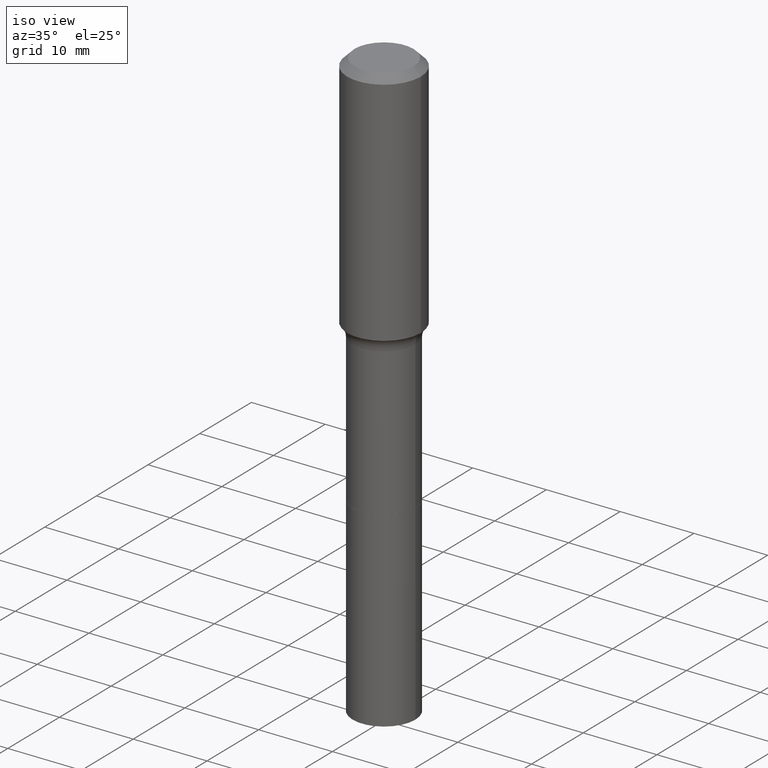
[diagram: clean part render]
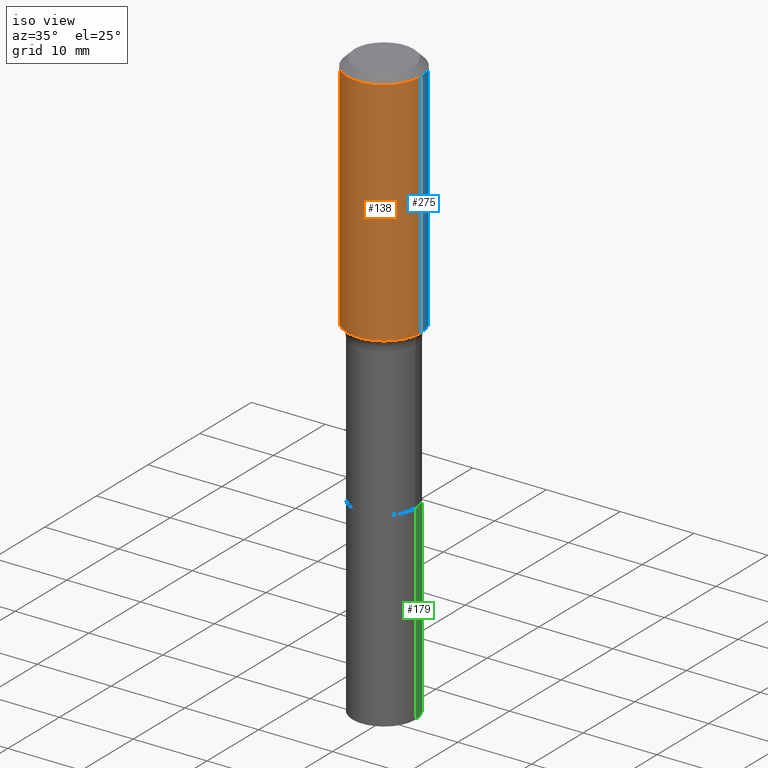
[diagram: same view with three faces highlighted in distinct colors, each labeled with its STEP entity id]
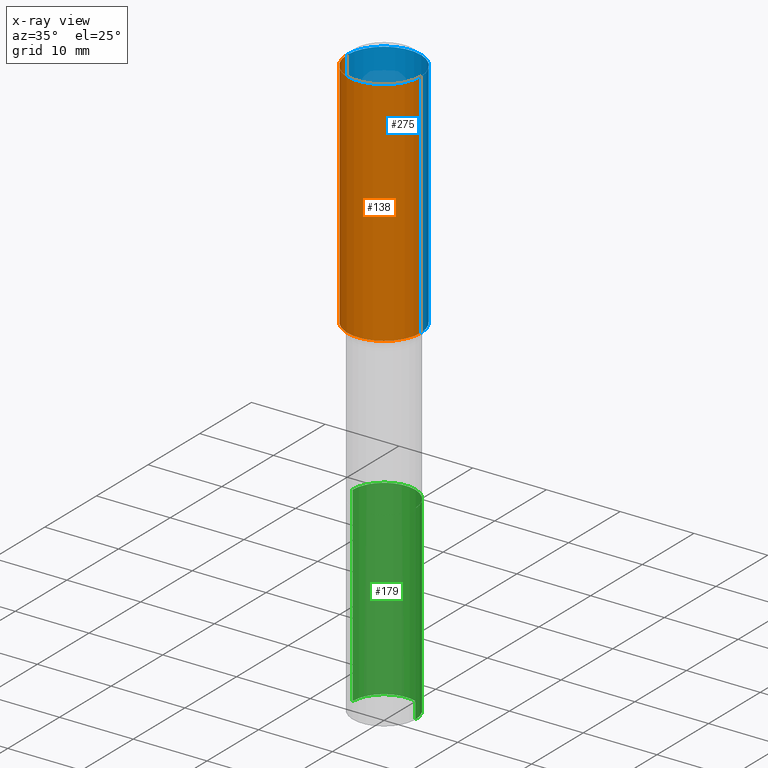
[diagram: x-ray of the same camera — body ghosted, the three highlighted faces saturated]
A machine part, iso view with three faces highlighted in distinct colors.
The next image is the same camera in x-ray (body ghosted, the three faces saturated) — at least one of them is partly hidden behind the body in this view.
Their STEP definitions:

[orange] entity #138 — the highlighted cylindrical surface (partial cylindrical patch) has radius 5 mm, axis along (-0, 0, 1).
#26 = VERTEX_POINT ( 'NONE', #387 ) ;
#43 = CARTESIAN_POINT ( 'NONE',  ( 0.1968500000000001915, -5.827626847015647066E-15, -1.275398666569575568 ) ) ;
#54 = ORIENTED_EDGE ( 'NONE', *, *, #125, .F. ) ;
#56 = VERTEX_POINT ( 'NONE', #43 ) ;
#65 = EDGE_LOOP ( 'NONE', ( #211, #261, #126, #54 ) ) ;
#67 = EDGE_CURVE ( 'NONE', #56, #154, #83, .T. ) ;
#76 = CARTESIAN_POINT ( 'NONE',  ( 0.1968500000000000527, -1.512055823412797583E-15, -0.03937000000000030059 ) ) ;
#83 = LINE ( 'NONE', #315, #141 ) ;
#92 = VERTEX_POINT ( 'NONE', #283 ) ;
#125 = EDGE_CURVE ( 'NONE', #92, #154, #422, .T. ) ;
#126 = ORIENTED_EDGE ( 'NONE', *, *, #67, .T. ) ;
#138 = ADVANCED_FACE ( 'NONE', ( #246 ), #431, .T. ) ;
#141 = VECTOR ( 'NONE', #171, 39.37007874015748143 ) ;
#154 = VERTEX_POINT ( 'NONE', #76 ) ;
#164 = EDGE_CURVE ( 'NONE', #26, #56, #255, .T. ) ;
#171 = DIRECTION ( 'NONE',  ( -2.445468806185136877E-29, 3.491481338843145188E-15, 1.000000000000000000 ) ) ;
#211 = ORIENTED_EDGE ( 'NONE', *, *, #388, .F. ) ;
#237 = CARTESIAN_POINT ( 'NONE',  ( 3.118947654546014768E-29, -4.453030643913104669E-15, -1.275398666569575568 ) ) ;
#238 = DIRECTION ( 'NONE',  ( -2.445468806185136597E-29, 3.491481338843145583E-15, 1.000000000000000000 ) ) ;
#246 = FACE_OUTER_BOUND ( 'NONE', #65, .T. ) ;
#249 = CARTESIAN_POINT ( 'NONE',  ( 9.627810689950955906E-31, -1.374596203102556794E-16, -0.03937000000000030059 ) ) ;
#255 = CIRCLE ( 'NONE', #498, 0.1968500000000001915 ) ;
#261 = ORIENTED_EDGE ( 'NONE', *, *, #164, .T. ) ;
#278 = LINE ( 'NONE', #466, #380 ) ;
#283 = CARTESIAN_POINT ( 'NONE',  ( -0.1968500000000000527, -8.965417567679217455E-16, -0.03937000000000030059 ) ) ;
#286 = DIRECTION ( 'NONE',  ( 1.000000000000000000, -6.982962677686266711E-15, 4.876176775795935793E-29 ) ) ;
#311 = DIRECTION ( 'NONE',  ( -2.445468806185136877E-29, 3.491481338843145188E-15, 1.000000000000000000 ) ) ;
#315 = CARTESIAN_POINT ( 'NONE',  ( 0.1968500000000001082, -1.374596203102542397E-15, 9.598753983154305062E-30 ) ) ;
#356 = DIRECTION ( 'NONE',  ( 1.000000000000000000, -6.982962677686266711E-15, 0.000000000000000000 ) ) ;
#380 = VECTOR ( 'NONE', #311, 39.37007874015748143 ) ;
#387 = CARTESIAN_POINT ( 'NONE',  ( -0.1968500000000001915, -3.054327268569345698E-15, -1.275398666569575568 ) ) ;
#388 = EDGE_CURVE ( 'NONE', #26, #92, #278, .T. ) ;
#393 = DIRECTION ( 'NONE',  ( 1.000000000000000000, -6.982962677686266711E-15, 0.000000000000000000 ) ) ;
#403 = AXIS2_PLACEMENT_3D ( 'NONE', #249, #238, #393 ) ;
#407 = CARTESIAN_POINT ( 'NONE',  ( 0.000000000000000000, 0.000000000000000000, 0.000000000000000000 ) ) ;
#422 = CIRCLE ( 'NONE', #403, 0.1968500000000000527 ) ;
#431 = CYLINDRICAL_SURFACE ( 'NONE', #506, 0.1968500000000001082 ) ;
#466 = CARTESIAN_POINT ( 'NONE',  ( -0.1968500000000001082, 1.398703375343757985E-15, -9.682923725166787881E-30 ) ) ;
#475 = DIRECTION ( 'NONE',  ( -2.445468806185136597E-29, 3.491481338843145583E-15, 1.000000000000000000 ) ) ;
#498 = AXIS2_PLACEMENT_3D ( 'NONE', #237, #511, #356 ) ;
#506 = AXIS2_PLACEMENT_3D ( 'NONE', #407, #475, #286 ) ;
#511 = DIRECTION ( 'NONE',  ( -2.445468806185136597E-29, 3.491481338843145583E-15, 1.000000000000000000 ) ) ;

[blue] entity #275 — the highlighted cylindrical surface (partial cylindrical patch) has radius 5 mm, axis along (-0, 0, 1).
#26 = VERTEX_POINT ( 'NONE', #387 ) ;
#43 = CARTESIAN_POINT ( 'NONE',  ( 0.1968500000000001915, -5.827626847015647066E-15, -1.275398666569575568 ) ) ;
#47 = EDGE_CURVE ( 'NONE', #56, #26, #396, .T. ) ;
#56 = VERTEX_POINT ( 'NONE', #43 ) ;
#67 = EDGE_CURVE ( 'NONE', #56, #154, #83, .T. ) ;
#76 = CARTESIAN_POINT ( 'NONE',  ( 0.1968500000000000527, -1.512055823412797583E-15, -0.03937000000000030059 ) ) ;
#83 = LINE ( 'NONE', #315, #141 ) ;
#92 = VERTEX_POINT ( 'NONE', #283 ) ;
#96 = CYLINDRICAL_SURFACE ( 'NONE', #267, 0.1968500000000001082 ) ;
#98 = AXIS2_PLACEMENT_3D ( 'NONE', #474, #232, #504 ) ;
#141 = VECTOR ( 'NONE', #171, 39.37007874015748143 ) ;
#154 = VERTEX_POINT ( 'NONE', #76 ) ;
#167 = AXIS2_PLACEMENT_3D ( 'NONE', #402, #207, #509 ) ;
#171 = DIRECTION ( 'NONE',  ( -2.445468806185136877E-29, 3.491481338843145188E-15, 1.000000000000000000 ) ) ;
#181 = DIRECTION ( 'NONE',  ( 1.000000000000000000, -6.982962677686266711E-15, 4.876176775795935793E-29 ) ) ;
#189 = ORIENTED_EDGE ( 'NONE', *, *, #388, .T. ) ;
#197 = ORIENTED_EDGE ( 'NONE', *, *, #67, .F. ) ;
#207 = DIRECTION ( 'NONE',  ( -2.445468806185136597E-29, 3.491481338843145583E-15, 1.000000000000000000 ) ) ;
#223 = EDGE_LOOP ( 'NONE', ( #377, #189, #505, #197 ) ) ;
#232 = DIRECTION ( 'NONE',  ( -2.445468806185136597E-29, 3.491481338843145583E-15, 1.000000000000000000 ) ) ;
#266 = DIRECTION ( 'NONE',  ( -2.445468806185136597E-29, 3.491481338843145583E-15, 1.000000000000000000 ) ) ;
#267 = AXIS2_PLACEMENT_3D ( 'NONE', #449, #266, #181 ) ;
#275 = ADVANCED_FACE ( 'NONE', ( #424 ), #96, .T. ) ;
#278 = LINE ( 'NONE', #466, #380 ) ;
#283 = CARTESIAN_POINT ( 'NONE',  ( -0.1968500000000000527, -8.965417567679217455E-16, -0.03937000000000030059 ) ) ;
#311 = DIRECTION ( 'NONE',  ( -2.445468806185136877E-29, 3.491481338843145188E-15, 1.000000000000000000 ) ) ;
#315 = CARTESIAN_POINT ( 'NONE',  ( 0.1968500000000001082, -1.374596203102542397E-15, 9.598753983154305062E-30 ) ) ;
#339 = CIRCLE ( 'NONE', #98, 0.1968500000000000527 ) ;
#343 = EDGE_CURVE ( 'NONE', #154, #92, #339, .T. ) ;
#377 = ORIENTED_EDGE ( 'NONE', *, *, #47, .T. ) ;
#380 = VECTOR ( 'NONE', #311, 39.37007874015748143 ) ;
#387 = CARTESIAN_POINT ( 'NONE',  ( -0.1968500000000001915, -3.054327268569345698E-15, -1.275398666569575568 ) ) ;
#388 = EDGE_CURVE ( 'NONE', #26, #92, #278, .T. ) ;
#396 = CIRCLE ( 'NONE', #167, 0.1968500000000001915 ) ;
#402 = CARTESIAN_POINT ( 'NONE',  ( 3.118947654546014768E-29, -4.453030643913104669E-15, -1.275398666569575568 ) ) ;
#424 = FACE_OUTER_BOUND ( 'NONE', #223, .T. ) ;
#449 = CARTESIAN_POINT ( 'NONE',  ( 0.000000000000000000, 0.000000000000000000, 0.000000000000000000 ) ) ;
#466 = CARTESIAN_POINT ( 'NONE',  ( -0.1968500000000001082, 1.398703375343757985E-15, -9.682923725166787881E-30 ) ) ;
#474 = CARTESIAN_POINT ( 'NONE',  ( 9.627810689950955906E-31, -1.374596203102556794E-16, -0.03937000000000030059 ) ) ;
#504 = DIRECTION ( 'NONE',  ( 1.000000000000000000, -6.982962677686266711E-15, 0.000000000000000000 ) ) ;
#505 = ORIENTED_EDGE ( 'NONE', *, *, #343, .F. ) ;
#509 = DIRECTION ( 'NONE',  ( 1.000000000000000000, -6.982962677686266711E-15, 0.000000000000000000 ) ) ;

[green] entity #179 — the highlighted cylindrical surface (partial cylindrical patch) has radius 4.2494 mm, axis along (-0, 0, 1).
#6 = CARTESIAN_POINT ( 'NONE',  ( 5.207870369651868145E-29, -7.435458659200363034E-15, -2.129599999999999937 ) ) ;
#8 = ORIENTED_EDGE ( 'NONE', *, *, #250, .F. ) ;
#23 = DIRECTION ( 'NONE',  ( 1.000000000000000000, -6.982962677686271444E-15, 0.000000000000000000 ) ) ;
#30 = CIRCLE ( 'NONE', #234, 0.1673000000000000043 ) ;
#51 = CARTESIAN_POINT ( 'NONE',  ( -0.1673000000000000043, -8.027376145083720030E-15, -2.129599999999999937 ) ) ;
#68 = VERTEX_POINT ( 'NONE', #160 ) ;
#103 = CARTESIAN_POINT ( 'NONE',  ( 7.702248551960706711E-29, -1.099676962482037231E-14, -3.149600000000000399 ) ) ;
#108 = ORIENTED_EDGE ( 'NONE', *, *, #437, .T. ) ;
#117 = DIRECTION ( 'NONE',  ( -2.445468806185136597E-29, 3.491481338843145583E-15, 1.000000000000000000 ) ) ;
#124 = CARTESIAN_POINT ( 'NONE',  ( 5.207870369651868145E-29, -7.435458659200363034E-15, -2.129599999999999937 ) ) ;
#133 = CYLINDRICAL_SURFACE ( 'NONE', #513, 0.1673000000000001153 ) ;
#139 = DIRECTION ( 'NONE',  ( -2.445468806185136877E-29, 3.491481338843145188E-15, 1.000000000000000000 ) ) ;
#146 = ORIENTED_EDGE ( 'NONE', *, *, #168, .F. ) ;
#160 = CARTESIAN_POINT ( 'NONE',  ( 0.1673000000000000043, -8.603708315177275821E-15, -2.129599999999999937 ) ) ;
#168 = EDGE_CURVE ( 'NONE', #68, #288, #30, .T. ) ;
#173 = DIRECTION ( 'NONE',  ( -2.445468806185136597E-29, 3.491481338843145583E-15, 1.000000000000000000 ) ) ;
#179 = ADVANCED_FACE ( 'NONE', ( #366 ), #133, .T. ) ;
#206 = CIRCLE ( 'NONE', #379, 0.1673000000000002263 ) ;
#219 = LINE ( 'NONE', #416, #472 ) ;
#230 = LINE ( 'NONE', #347, #290 ) ;
#234 = AXIS2_PLACEMENT_3D ( 'NONE', #124, #117, #439 ) ;
#236 = DIRECTION ( 'NONE',  ( -2.445468806185136877E-29, 3.491481338843145188E-15, 1.000000000000000000 ) ) ;
#239 = CARTESIAN_POINT ( 'NONE',  ( -0.1673000000000002263, -8.027376145083716875E-15, -3.149600000000000399 ) ) ;
#250 = EDGE_CURVE ( 'NONE', #298, #68, #219, .T. ) ;
#288 = VERTEX_POINT ( 'NONE', #51 ) ;
#290 = VECTOR ( 'NONE', #236, 39.37007874015748143 ) ;
#298 = VERTEX_POINT ( 'NONE', #329 ) ;
#314 = EDGE_CURVE ( 'NONE', #298, #458, #206, .T. ) ;
#329 = CARTESIAN_POINT ( 'NONE',  ( 0.1673000000000002263, -1.216501928079728667E-14, -3.149600000000000399 ) ) ;
#347 = CARTESIAN_POINT ( 'NONE',  ( -0.1673000000000001153, -6.246720662273714604E-15, -2.129599999999999937 ) ) ;
#366 = FACE_OUTER_BOUND ( 'NONE', #420, .T. ) ;
#379 = AXIS2_PLACEMENT_3D ( 'NONE', #103, #381, #23 ) ;
#381 = DIRECTION ( 'NONE',  ( -2.445468806185136597E-29, 3.491481338843145583E-15, 1.000000000000000000 ) ) ;
#416 = CARTESIAN_POINT ( 'NONE',  ( 0.1673000000000001153, -8.603708315177275821E-15, -2.129599999999999937 ) ) ;
#420 = EDGE_LOOP ( 'NONE', ( #452, #108, #146, #8 ) ) ;
#437 = EDGE_CURVE ( 'NONE', #458, #288, #230, .T. ) ;
#439 = DIRECTION ( 'NONE',  ( 1.000000000000000000, -6.982962677686264344E-15, 0.000000000000000000 ) ) ;
#452 = ORIENTED_EDGE ( 'NONE', *, *, #314, .T. ) ;
#458 = VERTEX_POINT ( 'NONE', #239 ) ;
#472 = VECTOR ( 'NONE', #139, 39.37007874015748143 ) ;
#484 = DIRECTION ( 'NONE',  ( 1.000000000000000000, -6.982962677686265133E-15, 0.000000000000000000 ) ) ;
#513 = AXIS2_PLACEMENT_3D ( 'NONE', #6, #173, #484 ) ;